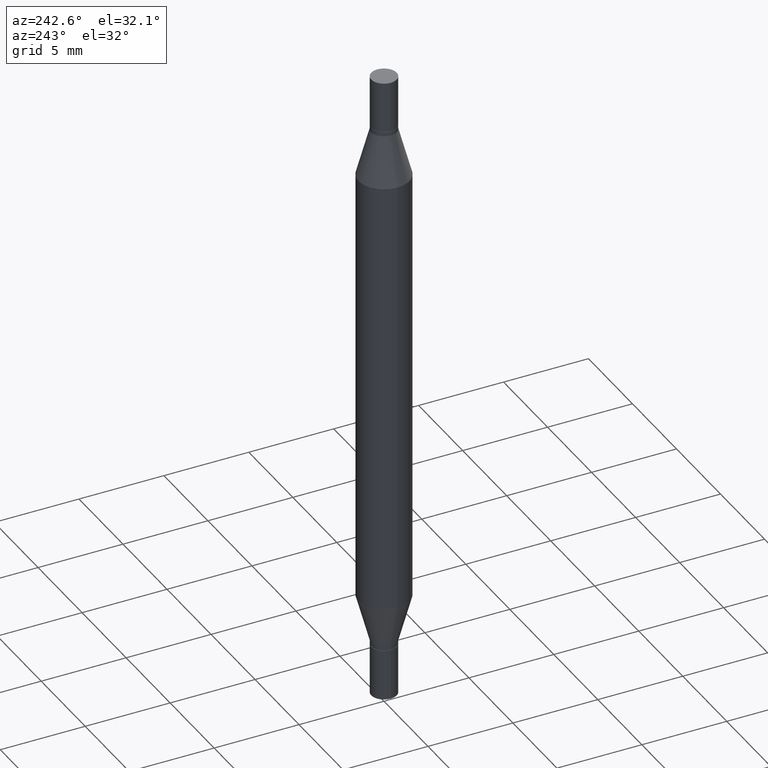
[diagram: clean part render]
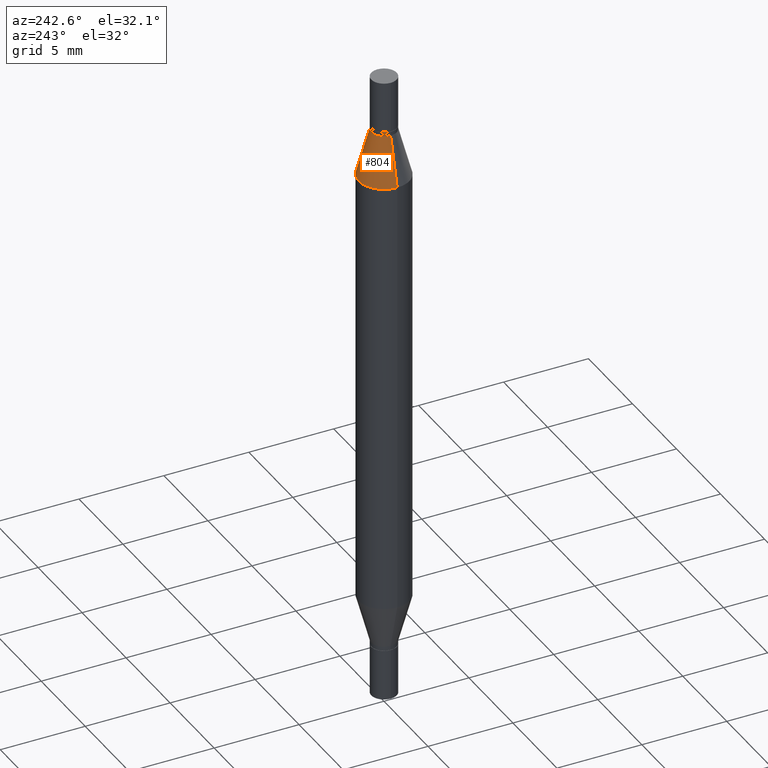
[diagram: same view with one face highlighted and labeled with its STEP entity id]
A machine part, auxiliary view. The second image highlights one B-rep face of the part: STEP entity #804.
In plain terms, the highlighted conical surface has half-angle 15 deg.
Its self-contained STEP definition (entity closure, byte-faithful):
#12 = EDGE_LOOP ( 'NONE', ( #535, #693, #69, #966 ) ) ;
#52 = VECTOR ( 'NONE', #455, 39.37007874015747433 ) ;
#69 = ORIENTED_EDGE ( 'NONE', *, *, #607, .T. ) ;
#160 = AXIS2_PLACEMENT_3D ( 'NONE', #316, #678, #914 ) ;
#175 = FACE_OUTER_BOUND ( 'NONE', #12, .T. ) ;
#203 = VECTOR ( 'NONE', #387, 39.37007874015747433 ) ;
#209 = EDGE_CURVE ( 'NONE', #511, #558, #704, .T. ) ;
#213 = CARTESIAN_POINT ( 'NONE',  ( 3.345645873741884627E-29, -4.467088663909703532E-16, -0.1280000000000001137 ) ) ;
#253 = EDGE_CURVE ( 'NONE', #580, #558, #302, .T. ) ;
#302 = LINE ( 'NONE', #911, #203 ) ;
#316 = CARTESIAN_POINT ( 'NONE',  ( 3.076410765668156654E-29, -8.311408901143919011E-16, -0.2380954988232820146 ) ) ;
#354 = DIRECTION ( 'NONE',  ( 2.445468806185136597E-29, 3.491805094961124077E-15, 1.000000000000000000 ) ) ;
#374 = AXIS2_PLACEMENT_3D ( 'NONE', #398, #915, #786 ) ;
#386 = CARTESIAN_POINT ( 'NONE',  ( 0.05904999999999999832, -1.243484836231766624E-15, -0.2380954988232820146 ) ) ;
#387 = DIRECTION ( 'NONE',  ( -0.2588190451025213501, -1.597197180879714326E-15, -0.9659258262890682012 ) ) ;
#398 = CARTESIAN_POINT ( 'NONE',  ( 3.345645873741884627E-29, -4.467088663909703532E-16, -0.1280000000000001137 ) ) ;
#411 = VERTEX_POINT ( 'NONE', #931 ) ;
#422 = DIRECTION ( 'NONE',  ( 1.000000000000000000, -6.982962677686265133E-15, 0.000000000000000000 ) ) ;
#433 = EDGE_CURVE ( 'NONE', #411, #580, #832, .T. ) ;
#455 = DIRECTION ( 'NONE',  ( 0.2588190451025213501, -5.180148453816008779E-15, -0.9659258262890682012 ) ) ;
#511 = VERTEX_POINT ( 'NONE', #386 ) ;
#521 = LINE ( 'NONE', #826, #52 ) ;
#535 = ORIENTED_EDGE ( 'NONE', *, *, #253, .F. ) ;
#558 = VERTEX_POINT ( 'NONE', #897 ) ;
#580 = VERTEX_POINT ( 'NONE', #901 ) ;
#607 = EDGE_CURVE ( 'NONE', #411, #511, #521, .T. ) ;
#678 = DIRECTION ( 'NONE',  ( 2.445468806185136597E-29, 3.491805094961124077E-15, 1.000000000000000000 ) ) ;
#693 = ORIENTED_EDGE ( 'NONE', *, *, #433, .F. ) ;
#704 = CIRCLE ( 'NONE', #160, 0.05904999999999999832 ) ;
#720 = AXIS2_PLACEMENT_3D ( 'NONE', #213, #354, #422 ) ;
#786 = DIRECTION ( 'NONE',  ( 1.000000000000000000, -6.982962677686265133E-15, 0.000000000000000000 ) ) ;
#804 = ADVANCED_FACE ( 'NONE', ( #175 ), #815, .T. ) ;
#815 = CONICAL_SURFACE ( 'NONE', #374, 0.02954999999999991661, 0.2617993877991500740 ) ;
#826 = CARTESIAN_POINT ( 'NONE',  ( 0.02954999999999991661, -6.530554135165988789E-16, -0.1280000000000001137 ) ) ;
#832 = CIRCLE ( 'NONE', #720, 0.02954999999999991661 ) ;
#897 = CARTESIAN_POINT ( 'NONE',  ( -0.05904999999999999832, -4.260284833459836245E-16, -0.2380954988232820146 ) ) ;
#901 = CARTESIAN_POINT ( 'NONE',  ( -0.02954999999999991661, -2.275696666105042854E-16, -0.1280000000000001137 ) ) ;
#911 = CARTESIAN_POINT ( 'NONE',  ( -0.02954999999999991661, -2.439811505568221169E-16, -0.1280000000000001137 ) ) ;
#914 = DIRECTION ( 'NONE',  ( 1.000000000000000000, -6.982962677686265133E-15, 0.000000000000000000 ) ) ;
#915 = DIRECTION ( 'NONE',  ( -2.445468806185136597E-29, -3.491805094961124077E-15, -1.000000000000000000 ) ) ;
#931 = CARTESIAN_POINT ( 'NONE',  ( 0.02954999999999991661, -6.530554135165988789E-16, -0.1280000000000001137 ) ) ;
#966 = ORIENTED_EDGE ( 'NONE', *, *, #209, .T. ) ;